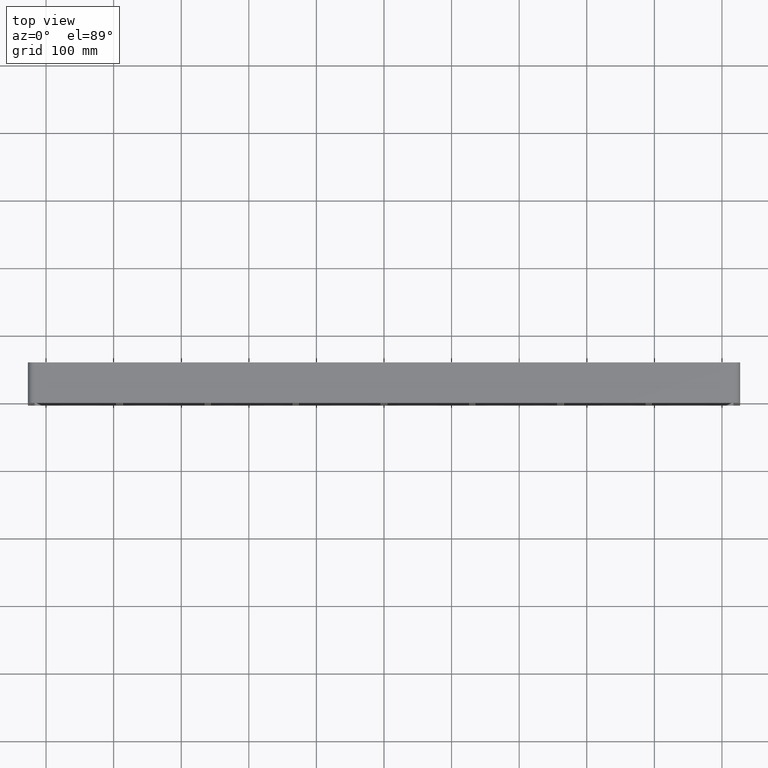
[diagram: clean part render]
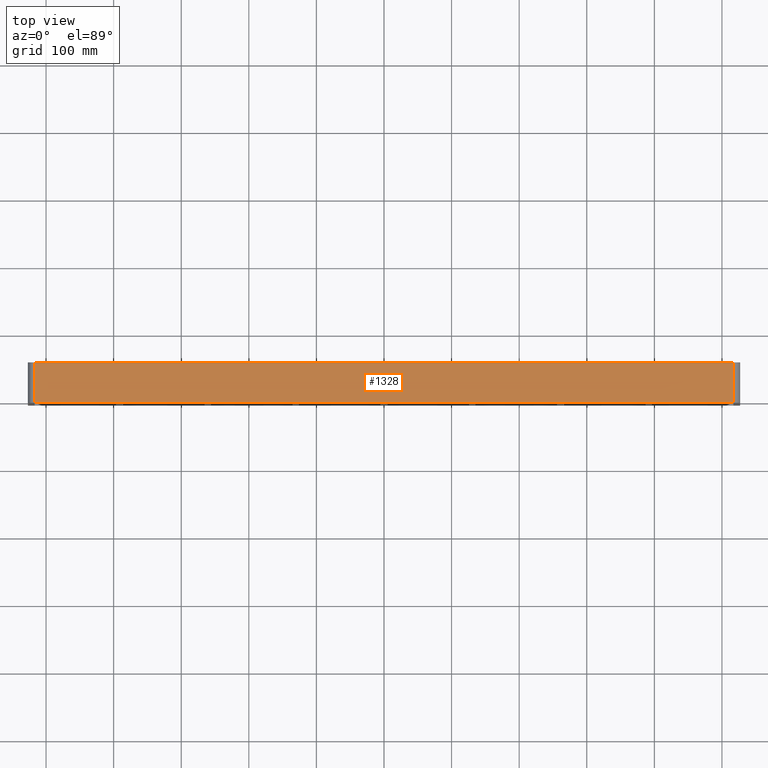
[diagram: same view with one face highlighted and labeled with its STEP entity id]
A machine part, top view. The second image highlights one B-rep face of the part: STEP entity #1328.
In plain terms, the highlighted planar face has unit normal (0, 0, 1).
Its self-contained STEP definition (entity closure, byte-faithful):
#1072=CARTESIAN_POINT('',(517.00000000000011,-3.0,118.99999999999999));
#1073=VERTEX_POINT('',#1072);
#1081=CARTESIAN_POINT('',(-517.0,-3.0,118.99999999999999));
#1082=VERTEX_POINT('',#1081);
#1083=CARTESIAN_POINT('',(517.0,-3.0,118.99999999999999));
#1084=DIRECTION('',(-1.0,0.0,0.0));
#1085=VECTOR('',#1084,1034.0);
#1086=LINE('',#1083,#1085);
#1087=EDGE_CURVE('',#1073,#1082,#1086,.T.);
#1213=CARTESIAN_POINT('',(517.00000000000011,57.0,118.99999999999999));
#1214=VERTEX_POINT('',#1213);
#1222=CARTESIAN_POINT('',(517.00000000000011,57.0,118.99999999999999));
#1223=DIRECTION('',(0.0,-1.0,0.0));
#1224=VECTOR('',#1223,60.0);
#1225=LINE('',#1222,#1224);
#1226=EDGE_CURVE('',#1214,#1073,#1225,.T.);
#1292=CARTESIAN_POINT('',(-517.0,57.0,118.99999999999999));
#1293=VERTEX_POINT('',#1292);
#1303=CARTESIAN_POINT('',(-517.0,-3.0,118.99999999999999));
#1304=DIRECTION('',(0.0,1.0,0.0));
#1305=VECTOR('',#1304,60.0);
#1306=LINE('',#1303,#1305);
#1307=EDGE_CURVE('',#1082,#1293,#1306,.T.);
#1312=CARTESIAN_POINT('',(-527.0,0.0,118.99999999999999));
#1313=DIRECTION('',(0.0,0.0,1.0));
#1314=DIRECTION('',(1.0,0.0,0.0));
#1315=AXIS2_PLACEMENT_3D('',#1312,#1313,#1314);
#1316=PLANE('',#1315);
#1317=ORIENTED_EDGE('',*,*,#1226,.F.);
#1318=CARTESIAN_POINT('',(-517.0,57.0,118.99999999999999));
#1319=DIRECTION('',(1.0,0.0,0.0));
#1320=VECTOR('',#1319,1034.0);
#1321=LINE('',#1318,#1320);
#1322=EDGE_CURVE('',#1293,#1214,#1321,.T.);
#1323=ORIENTED_EDGE('',*,*,#1322,.F.);
#1324=ORIENTED_EDGE('',*,*,#1307,.F.);
#1325=ORIENTED_EDGE('',*,*,#1087,.F.);
#1326=EDGE_LOOP('',(#1317,#1323,#1324,#1325));
#1327=FACE_OUTER_BOUND('',#1326,.T.);
#1328=ADVANCED_FACE('',(#1327),#1316,.T.);